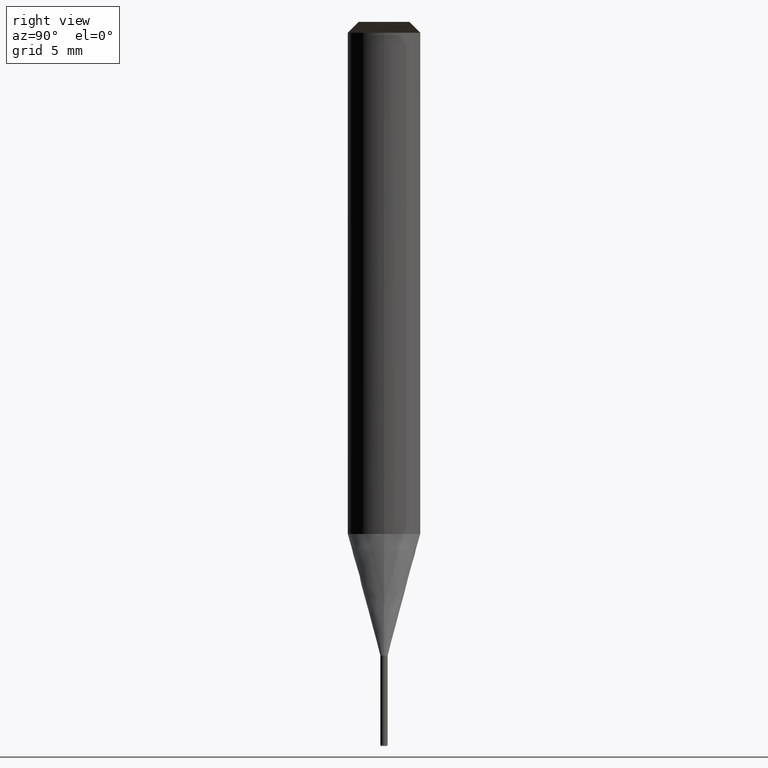
[diagram: clean part render]
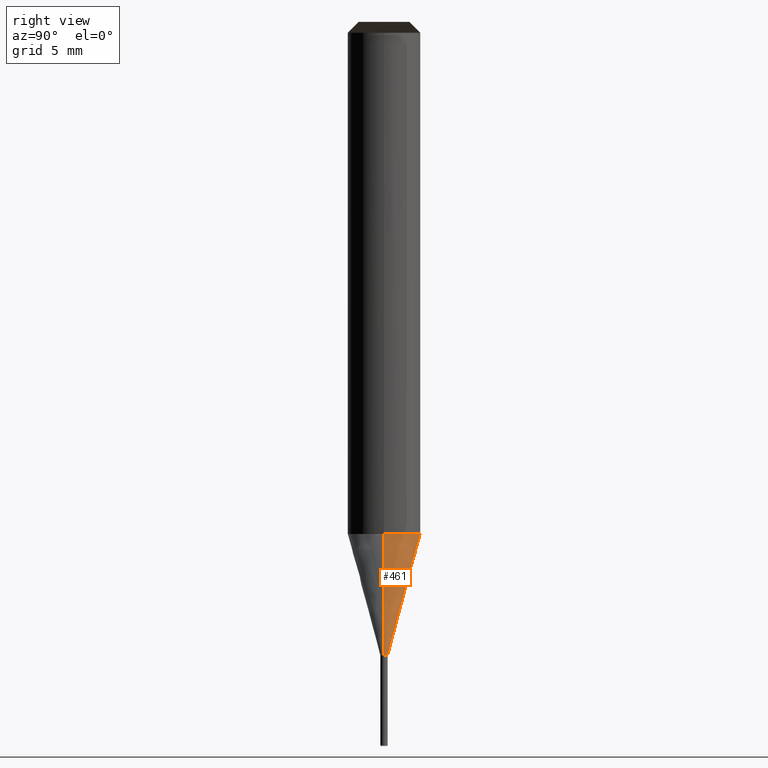
[diagram: same view with one face highlighted and labeled with its STEP entity id]
A machine part, right view. The second image highlights one B-rep face of the part: STEP entity #461.
In plain terms, the highlighted face is a freeform B-spline surface patch.
Its self-contained STEP definition (entity closure, byte-faithful):
#220=CARTESIAN_POINT('',(0.2,0.0,-6.717691453624));
#221=CARTESIAN_POINT('',(0.2,0.2,-6.717691453624));
#222=CARTESIAN_POINT('',(0.0,0.2,-6.717691453624));
#223=CARTESIAN_POINT('',(-0.2,0.2,-6.717691453624));
#224=CARTESIAN_POINT('',(-0.2,0.0,-6.717691453624));
#225=CARTESIAN_POINT('',(2.0,0.0,0.0));
#226=CARTESIAN_POINT('',(2.0,2.0,0.0));
#227=CARTESIAN_POINT('',(0.0,2.0,0.0));
#228=CARTESIAN_POINT('',(-2.0,2.0,0.0));
#229=CARTESIAN_POINT('',(-2.0,0.0,0.0));
#442=(
BOUNDED_SURFACE()
B_SPLINE_SURFACE(1,2,(
(#220,#221,#222,#223,#224),
(#225,#226,#227,#228,#229)
), .UNSPECIFIED.,.F.,.F.,.F.)
B_SPLINE_SURFACE_WITH_KNOTS((2,2),(3,2,3),(
0.0,1.0),(
0.0,0.5,1.0), .UNSPECIFIED.)
GEOMETRIC_REPRESENTATION_ITEM()
RATIONAL_B_SPLINE_SURFACE(((1.0,0.707106781187,1.0,0.707106781187,1.0),
(1.0,0.707106781187,1.0,0.707106781187,1.0)
))
REPRESENTATION_ITEM('')
SURFACE()
);
#443=(
BOUNDED_CURVE()
B_SPLINE_CURVE(2,(#225,#226,#227,#228,#229),.UNSPECIFIED.,.F.,.F.)
B_SPLINE_CURVE_WITH_KNOTS((3,2,3),
(0.0,0.5,1.0),.UNSPECIFIED.)
CURVE()
GEOMETRIC_REPRESENTATION_ITEM()
RATIONAL_B_SPLINE_CURVE((1.0,0.707106781187,1.0,0.707106781187,1.0))
REPRESENTATION_ITEM('')
);
#444=(
BOUNDED_CURVE()
B_SPLINE_CURVE(1,(#229,#224),.UNSPECIFIED.,.F.,.F.)
B_SPLINE_CURVE_WITH_KNOTS((2,2),
(0.0,1.0),.UNSPECIFIED.)
CURVE()
GEOMETRIC_REPRESENTATION_ITEM()
RATIONAL_B_SPLINE_CURVE((1.0,1.0))
REPRESENTATION_ITEM('')
);
#445=(
BOUNDED_CURVE()
B_SPLINE_CURVE(2,(#224,#223,#222,#221,#220),.UNSPECIFIED.,.F.,.F.)
B_SPLINE_CURVE_WITH_KNOTS((3,2,3),
(0.0,0.5,1.0),.UNSPECIFIED.)
CURVE()
GEOMETRIC_REPRESENTATION_ITEM()
RATIONAL_B_SPLINE_CURVE((1.0,0.707106781187,1.0,0.707106781187,1.0))
REPRESENTATION_ITEM('')
);
#446=(
BOUNDED_CURVE()
B_SPLINE_CURVE(1,(#220,#225),.UNSPECIFIED.,.F.,.F.)
B_SPLINE_CURVE_WITH_KNOTS((2,2),
(0.0,1.0),.UNSPECIFIED.)
CURVE()
GEOMETRIC_REPRESENTATION_ITEM()
RATIONAL_B_SPLINE_CURVE((1.0,1.0))
REPRESENTATION_ITEM('')
);
#447=VERTEX_POINT('',#220);
#448=VERTEX_POINT('',#224);
#449=VERTEX_POINT('',#225);
#450=VERTEX_POINT('',#229);
#451=EDGE_CURVE('',#449,#450,#443,.T.);
#452=EDGE_CURVE('',#450,#448,#444,.T.);
#453=EDGE_CURVE('',#448,#447,#445,.T.);
#454=EDGE_CURVE('',#447,#449,#446,.T.);
#455=ORIENTED_EDGE('',*,*,#451,.T.);
#456=ORIENTED_EDGE('',*,*,#452,.T.);
#457=ORIENTED_EDGE('',*,*,#453,.T.);
#458=ORIENTED_EDGE('',*,*,#454,.T.);
#459=EDGE_LOOP('',(#455,#456,#457,#458));
#460=FACE_OUTER_BOUND('',#459,.T.);
#461=ADVANCED_FACE('',(#460),#442,.T.);